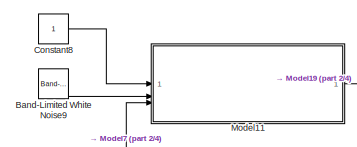
[diagram: root canvas - part 1/4, top center region]
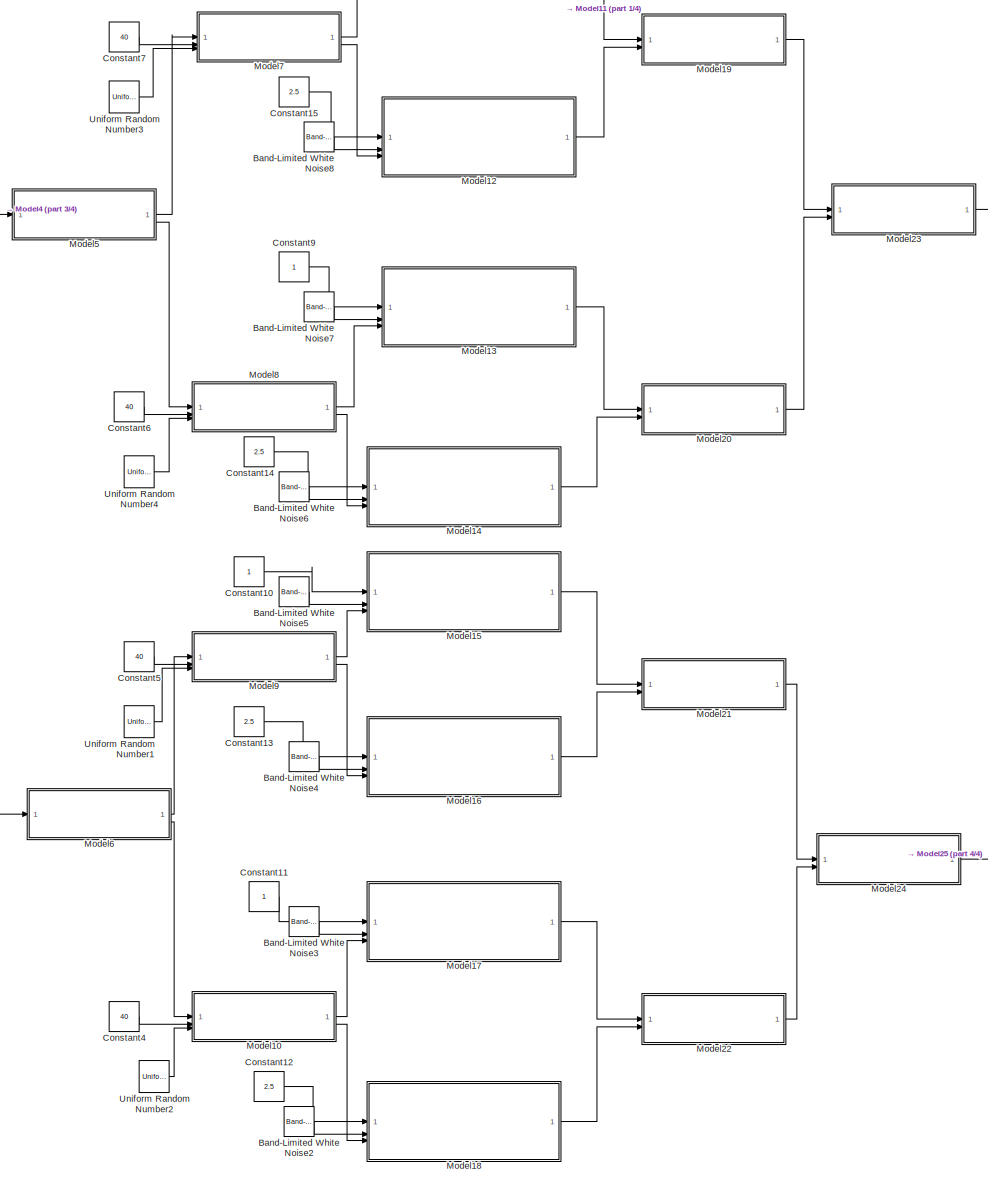
[diagram: root canvas - part 2/4, center side, full height]
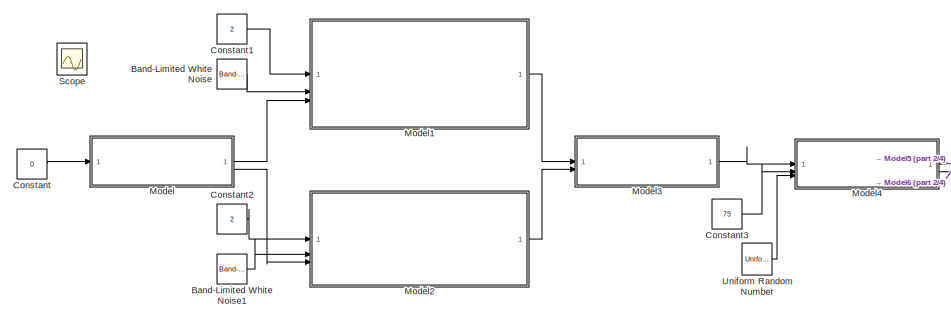
[diagram: root canvas - part 3/4, middle left region]
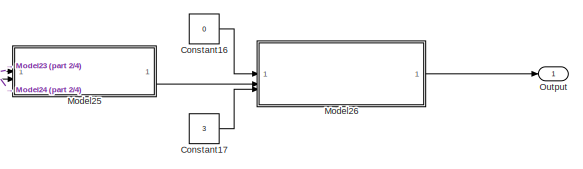
[diagram: root canvas - part 4/4, middle right region]
MODEL slx_3efae72255c0
KIND model
CONFIG AbsTol = auto
CONFIG EnableMultiTasking = off
CONFIG FixedStep = auto
CONFIG MaxStep = auto
CONFIG MinStep = auto
CONFIG RelTol = 1e-3
CONFIG SampleTimeConstraint = Unconstrained
CONFIG SolverName = VariableStepAuto
CONFIG StartTime = 0.0
CONFIG StopTime = 10.0
BLOCK [Reference] Band-Limited White Noise  REF=simulink/Sources/Band-Limited
White Noise
  SourceBlock = simulink/Sources/Band-Limited\nWhite Noise
  SourceType = Band-Limited White Noise.
BLOCK [Reference] Band-Limited White Noise1  REF=simulink/Sources/Band-Limited
White Noise
  SourceBlock = simulink/Sources/Band-Limited\nWhite Noise
  SourceType = Band-Limited White Noise.
BLOCK [Reference] Band-Limited White Noise2  REF=simulink/Sources/Band-Limited
White Noise
  SourceBlock = simulink/Sources/Band-Limited\nWhite Noise
  SourceType = Band-Limited White Noise.
BLOCK [Reference] Band-Limited White Noise3  REF=simulink/Sources/Band-Limited
White Noise
  SourceBlock = simulink/Sources/Band-Limited\nWhite Noise
  SourceType = Band-Limited White Noise.
BLOCK [Reference] Band-Limited White Noise4  REF=simulink/Sources/Band-Limited
White Noise
  SourceBlock = simulink/Sources/Band-Limited\nWhite Noise
  SourceType = Band-Limited White Noise.
BLOCK [Reference] Band-Limited White Noise5  REF=simulink/Sources/Band-Limited
White Noise
  SourceBlock = simulink/Sources/Band-Limited\nWhite Noise
  SourceType = Band-Limited White Noise.
BLOCK [Reference] Band-Limited White Noise6  REF=simulink/Sources/Band-Limited
White Noise
  SourceBlock = simulink/Sources/Band-Limited\nWhite Noise
  SourceType = Band-Limited White Noise.
BLOCK [Reference] Band-Limited White Noise7  REF=simulink/Sources/Band-Limited
White Noise
  SourceBlock = simulink/Sources/Band-Limited\nWhite Noise
  SourceType = Band-Limited White Noise.
BLOCK [Reference] Band-Limited White Noise8  REF=simulink/Sources/Band-Limited
White Noise
  SourceBlock = simulink/Sources/Band-Limited\nWhite Noise
  SourceType = Band-Limited White Noise.
BLOCK [Reference] Band-Limited White Noise9  REF=simulink/Sources/Band-Limited
White Noise
  SourceBlock = simulink/Sources/Band-Limited\nWhite Noise
  SourceType = Band-Limited White Noise.
BLOCK [Constant] Constant
  Value = 0
BLOCK [Constant] Constant1
  Value = 2
BLOCK [Constant] Constant10
BLOCK [Constant] Constant11
BLOCK [Constant] Constant12
  Value = 2.5
BLOCK [Constant] Constant13
  Value = 2.5
BLOCK [Constant] Constant14
  Value = 2.5
BLOCK [Constant] Constant15
  Value = 2.5
BLOCK [Constant] Constant16
  Value = 0
BLOCK [Constant] Constant17
  Value = 3
BLOCK [Constant] Constant2
  Value = 2
BLOCK [Constant] Constant3
  Value = 75
BLOCK [Constant] Constant4
  Value = 40
BLOCK [Constant] Constant5
  Value = 40
BLOCK [Constant] Constant6
  Value = 40
BLOCK [Constant] Constant7
  Value = 40
BLOCK [Constant] Constant8
BLOCK [Constant] Constant9
BLOCK [ModelReference] Model
  ModelNameDialog = PardoSplitTwo.slx
  ModelReferenceVersion = 1.3
BLOCK [ModelReference] Model1
  ModelNameDialog = UpdateProcessTime.slx
  ModelReferenceVersion = 1.6
BLOCK [ModelReference] Model10
  ModelNameDialog = CaseDemuxTwo.slx
  ModelReferenceVersion = 1.14
BLOCK [ModelReference] Model11
  ModelNameDialog = UpdateProcessTime.slx
  ModelReferenceVersion = 1.6
BLOCK [ModelReference] Model12
  ModelNameDialog = UpdateProcessTime.slx
  ModelReferenceVersion = 1.6
BLOCK [ModelReference] Model13
  ModelNameDialog = UpdateProcessTime.slx
  ModelReferenceVersion = 1.6
BLOCK [ModelReference] Model14
  ModelNameDialog = UpdateProcessTime.slx
  ModelReferenceVersion = 1.6
BLOCK [ModelReference] Model15
  ModelNameDialog = UpdateProcessTime.slx
  ModelReferenceVersion = 1.6
BLOCK [ModelReference] Model16
  ModelNameDialog = UpdateProcessTime.slx
  ModelReferenceVersion = 1.6
BLOCK [ModelReference] Model17
  ModelNameDialog = UpdateProcessTime.slx
  ModelReferenceVersion = 1.6
BLOCK [ModelReference] Model18
  ModelNameDialog = UpdateProcessTime.slx
  ModelReferenceVersion = 1.6
BLOCK [ModelReference] Model19
  ModelNameDialog = CaseMuxTwo.slx
  ModelReferenceVersion = 1.6
BLOCK [ModelReference] Model2
  ModelNameDialog = UpdateProcessTime.slx
  ModelReferenceVersion = 1.6
BLOCK [ModelReference] Model20
  ModelNameDialog = CaseMuxTwo.slx
  ModelReferenceVersion = 1.6
BLOCK [ModelReference] Model21
  ModelNameDialog = CaseMuxTwo.slx
  ModelReferenceVersion = 1.6
BLOCK [ModelReference] Model22
  ModelNameDialog = CaseMuxTwo.slx
  ModelReferenceVersion = 1.6
BLOCK [ModelReference] Model23
  ModelNameDialog = SplitMuxTwo.slx
  ModelReferenceVersion = 1.4
BLOCK [ModelReference] Model24
  ModelNameDialog = PardoMuxTwo.slx
  ModelReferenceVersion = 1.5
BLOCK [ModelReference] Model25
  ModelNameDialog = CaseMuxTwo.slx
  ModelReferenceVersion = 1.6
BLOCK [ModelReference] Model26
  ModelNameDialog = Loop.slx
  ModelReferenceVersion = 1.1
BLOCK [ModelReference] Model3
  ModelNameDialog = PardoMuxTwo.slx
  ModelReferenceVersion = 1.5
BLOCK [ModelReference] Model4
  ModelNameDialog = CaseDemuxTwo.slx
  ModelReferenceVersion = 1.14
BLOCK [ModelReference] Model5
  ModelNameDialog = PardoSplitTwo.slx
  ModelReferenceVersion = 1.3
BLOCK [ModelReference] Model6
  ModelNameDialog = PardoSplitTwo.slx
  ModelReferenceVersion = 1.3
BLOCK [ModelReference] Model7
  ModelNameDialog = CaseDemuxTwo.slx
  ModelReferenceVersion = 1.14
BLOCK [ModelReference] Model8
  ModelNameDialog = CaseDemuxTwo.slx
  ModelReferenceVersion = 1.14
BLOCK [ModelReference] Model9
  ModelNameDialog = CaseDemuxTwo.slx
  ModelReferenceVersion = 1.14
BLOCK [Outport] Output
BLOCK [Scope] Scope
  Floating = off
  IOType = viewer
  NumInputPorts = 1
  ScopeSpecificationString = Simulink.scopes.TimeScopeBlockCfg('CurrentConfiguration', extmgr.ConfigurationSet(extmgr.Configuration('Core','General UI',true),extmgr.Configuration('Core','Source UI',true),extmgr.Configuration('Sources','WiredSimulink',true),extmgr.Configuration('Visuals','Time Domain',true,'SerializedDisplays',{struct('MinYLimReal','8.4375','MaxYLimReal','14.0625','YLabelReal','','MinYLimMag','8.4375','MaxYLim...<+1505ch>
BLOCK [UniformRandomNumber] Uniform Random Number
  Maximum = 100
  Minimum = 0
  SampleTime = 0.1
BLOCK [UniformRandomNumber] Uniform Random Number1
  Maximum = 100
  Minimum = 0
  SampleTime = 0.1
BLOCK [UniformRandomNumber] Uniform Random Number2
  Maximum = 100
  Minimum = 0
  SampleTime = 0.1
BLOCK [UniformRandomNumber] Uniform Random Number3
  Maximum = 100
  Minimum = 0
  SampleTime = 0.1
BLOCK [UniformRandomNumber] Uniform Random Number4
  Maximum = 100
  Minimum = 0
  SampleTime = 0.1
LINE Band-Limited White Noise1:1 -> Model2:2
LINE Band-Limited White Noise2:1 -> Model18:2
LINE Band-Limited White Noise3:1 -> Model17:2
LINE Band-Limited White Noise4:1 -> Model16:2
LINE Band-Limited White Noise5:1 -> Model15:2
LINE Band-Limited White Noise6:1 -> Model14:2
LINE Band-Limited White Noise7:1 -> Model13:2
LINE Band-Limited White Noise8:1 -> Model12:2
LINE Band-Limited White Noise9:1 -> Model11:2
LINE Band-Limited White Noise:1 -> Model1:2
LINE Constant10:1 -> Model15:1
LINE Constant11:1 -> Model17:1
LINE Constant12:1 -> Model18:1
LINE Constant13:1 -> Model16:1
LINE Constant14:1 -> Model14:1
LINE Constant15:1 -> Model12:1
LINE Constant16:1 -> Model26:1
LINE Constant17:1 -> Model26:3
LINE Constant1:1 -> Model1:1
LINE Constant2:1 -> Model2:1
LINE Constant3:1 -> Model4:2
LINE Constant4:1 -> Model10:2
LINE Constant5:1 -> Model9:2
LINE Constant6:1 -> Model8:2
LINE Constant7:1 -> Model7:2
LINE Constant8:1 -> Model11:1
LINE Constant9:1 -> Model13:1
LINE Constant:1 -> Model:1
LINE Model10:1 -> Model17:3
LINE Model10:2 -> Model18:3
LINE Model11:1 -> Model19:1
LINE Model12:1 -> Model19:2
LINE Model13:1 -> Model20:1
LINE Model14:1 -> Model20:2
LINE Model15:1 -> Model21:1
LINE Model16:1 -> Model21:2
LINE Model17:1 -> Model22:1
LINE Model18:1 -> Model22:2
LINE Model19:1 -> Model23:1
LINE Model1:1 -> Model3:1
LINE Model20:1 -> Model23:2
LINE Model21:1 -> Model24:1
LINE Model22:1 -> Model24:2
LINE Model23:1 -> Model25:1
LINE Model24:1 -> Model25:2
LINE Model25:1 -> Model26:2
LINE Model26:1 -> Output:1
LINE Model2:1 -> Model3:2
LINE Model3:1 -> Model4:1
LINE Model4:1 -> Model5:1
LINE Model4:2 -> Model6:1
LINE Model5:1 -> Model7:1
LINE Model5:2 -> Model8:1
LINE Model6:1 -> Model9:1
LINE Model6:2 -> Model10:1
LINE Model7:1 -> Model11:3
LINE Model7:2 -> Model12:3
LINE Model8:1 -> Model13:3
LINE Model8:2 -> Model14:3
LINE Model9:1 -> Model15:3
LINE Model9:2 -> Model16:3
LINE Model:1 -> Model1:3
LINE Model:2 -> Model2:3
LINE Uniform Random Number1:1 -> Model9:3
LINE Uniform Random Number2:1 -> Model10:3
LINE Uniform Random Number3:1 -> Model7:3
LINE Uniform Random Number4:1 -> Model8:3
LINE Uniform Random Number:1 -> Model4:3
